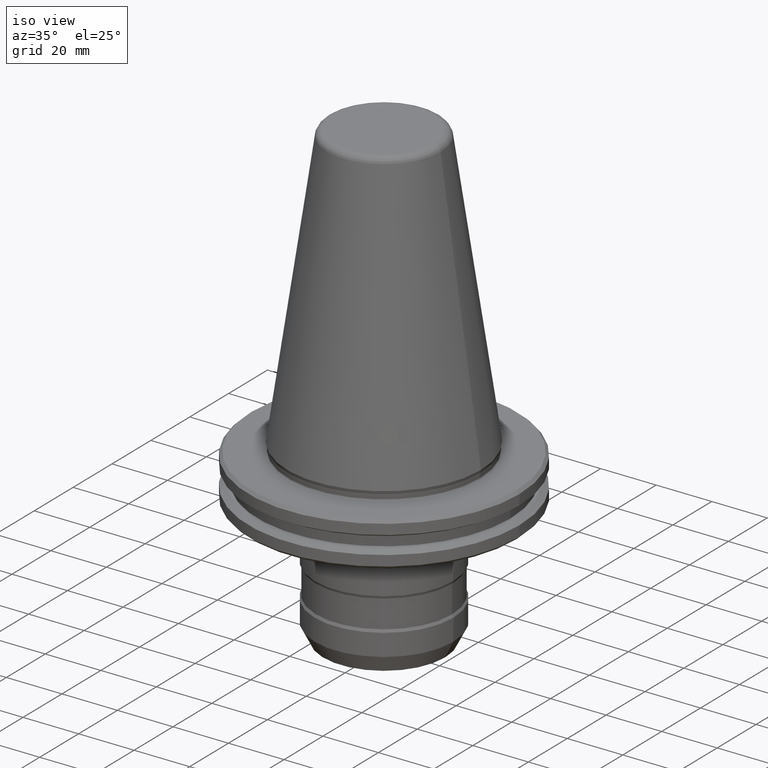
[diagram: clean part render]
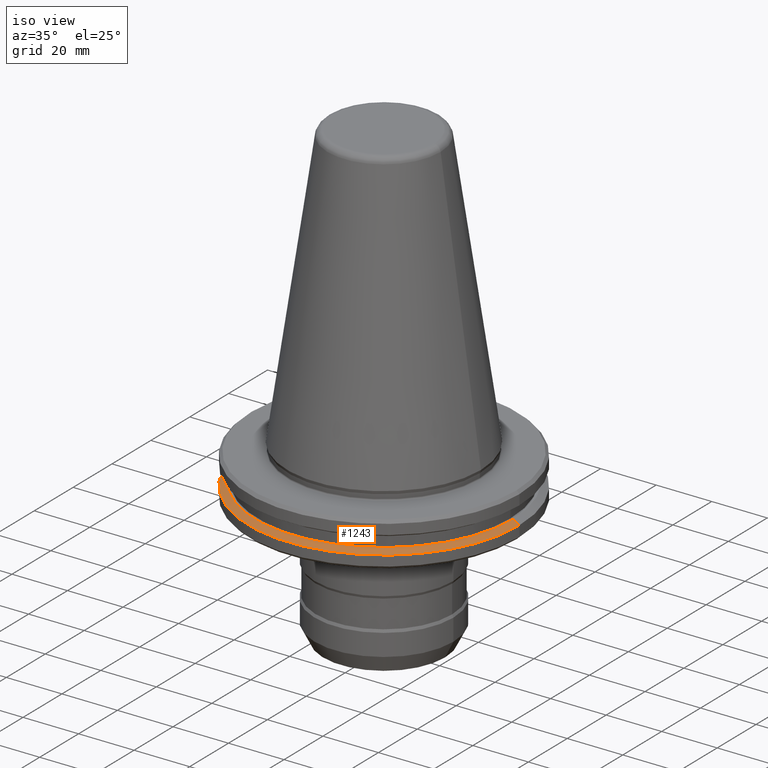
[diagram: same view with one face highlighted and labeled with its STEP entity id]
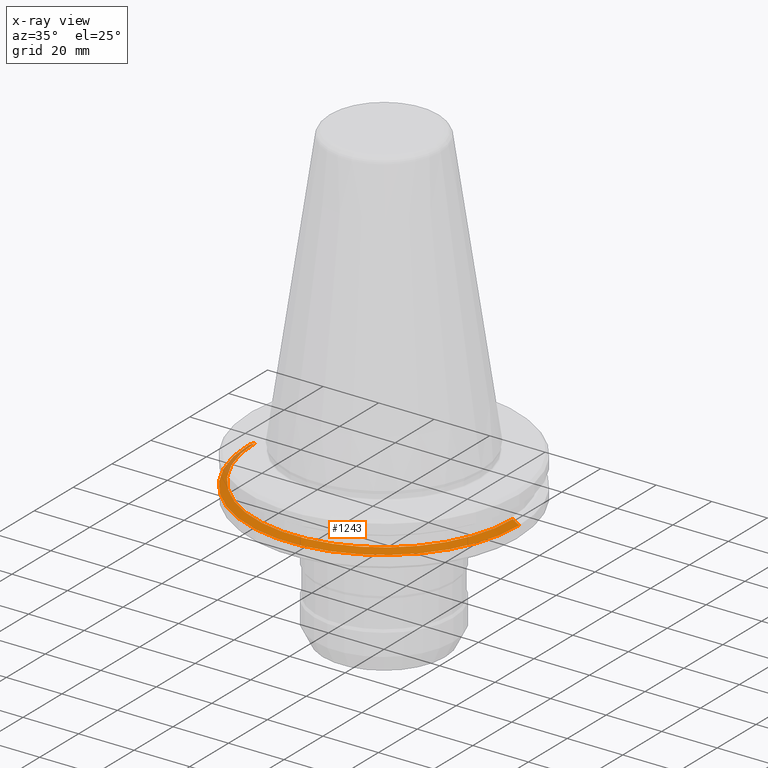
[diagram: x-ray of the same camera — body ghosted, the highlighted face saturated]
A machine part, iso view. The second image highlights one B-rep face of the part: STEP entity #1243.
The next image is the same camera in x-ray: the body ghosted, the highlighted face saturated — about 5% of this face is hidden behind the body in this view.
In plain terms, the highlighted conical surface has half-angle 60 deg.
Its self-contained STEP definition (entity closure, byte-faithful):
#10 = CARTESIAN_POINT ( 'NONE',  ( 48.75000000637186300, 0.0000000000000000000, -14.34759526419227000 ) ) ;
#14 = VECTOR ( 'NONE', #1068, 1000.000000000000000 ) ;
#54 = LINE ( 'NONE', #961, #590 ) ;
#143 = AXIS2_PLACEMENT_3D ( 'NONE', #1147, #598, #374 ) ;
#162 = AXIS2_PLACEMENT_3D ( 'NONE', #783, #192, #239 ) ;
#183 = VERTEX_POINT ( 'NONE', #615 ) ;
#192 = DIRECTION ( 'NONE',  ( 0.0000000000000000000, 0.0000000000000000000, -1.000000000000000000 ) ) ;
#232 = ORIENTED_EDGE ( 'NONE', *, *, #356, .T. ) ;
#239 = DIRECTION ( 'NONE',  ( -1.000000000000000000, 0.0000000000000000000, 0.0000000000000000000 ) ) ;
#287 = CARTESIAN_POINT ( 'NONE',  ( 48.75000000637186300, 5.970153146623674900E-015, -14.34759526419227000 ) ) ;
#321 = DIRECTION ( 'NONE',  ( -0.8660254037844421500, 0.0000000000000000000, -0.4999999999999939500 ) ) ;
#324 = VERTEX_POINT ( 'NONE', #10 ) ;
#356 = EDGE_CURVE ( 'NONE', #1009, #183, #54, .T. ) ;
#374 = DIRECTION ( 'NONE',  ( 1.000000000000000000, 0.0000000000000000000, 0.0000000000000000000 ) ) ;
#375 = FACE_OUTER_BOUND ( 'NONE', #924, .T. ) ;
#434 = CIRCLE ( 'NONE', #974, 48.75000000637186300 ) ;
#497 = ORIENTED_EDGE ( 'NONE', *, *, #936, .T. ) ;
#589 = CIRCLE ( 'NONE', #143, 46.37259527056269800 ) ;
#590 = VECTOR ( 'NONE', #321, 1000.000000000000000 ) ;
#598 = DIRECTION ( 'NONE',  ( -0.0000000000000000000, -0.0000000000000000000, 1.000000000000000000 ) ) ;
#615 = CARTESIAN_POINT ( 'NONE',  ( -48.75000000637186300, 5.970153146623674900E-015, -14.34759526419227000 ) ) ;
#783 = CARTESIAN_POINT ( 'NONE',  ( 0.0000000000000000000, 0.0000000000000000000, -14.34759526419227000 ) ) ;
#799 = EDGE_CURVE ( 'NONE', #1009, #1210, #589, .T. ) ;
#842 = EDGE_CURVE ( 'NONE', #1210, #324, #1050, .T. ) ;
#871 = ORIENTED_EDGE ( 'NONE', *, *, #842, .F. ) ;
#924 = EDGE_LOOP ( 'NONE', ( #871, #1133, #232, #497 ) ) ;
#926 = CARTESIAN_POINT ( 'NONE',  ( 46.37259527056269800, 5.824579091624352800E-015, -12.97500000000018100 ) ) ;
#933 = CARTESIAN_POINT ( 'NONE',  ( 0.0000000000000000000, 0.0000000000000000000, -14.34759526419227000 ) ) ;
#936 = EDGE_CURVE ( 'NONE', #183, #324, #434, .T. ) ;
#961 = CARTESIAN_POINT ( 'NONE',  ( -48.75000000637186300, 0.0000000000000000000, -14.34759526419227000 ) ) ;
#973 = DIRECTION ( 'NONE',  ( -0.0000000000000000000, -0.0000000000000000000, 1.000000000000000000 ) ) ;
#974 = AXIS2_PLACEMENT_3D ( 'NONE', #933, #973, #1048 ) ;
#982 = CARTESIAN_POINT ( 'NONE',  ( -46.37259527056269800, 0.0000000000000000000, -12.97500000000018100 ) ) ;
#1009 = VERTEX_POINT ( 'NONE', #982 ) ;
#1048 = DIRECTION ( 'NONE',  ( 1.000000000000000000, 0.0000000000000000000, 0.0000000000000000000 ) ) ;
#1050 = LINE ( 'NONE', #287, #14 ) ;
#1062 = CONICAL_SURFACE ( 'NONE', #162, 48.75000000637186300, 1.047197551196604700 ) ;
#1068 = DIRECTION ( 'NONE',  ( 0.8660254037844421500, 1.060575238724911200E-016, -0.4999999999999939500 ) ) ;
#1133 = ORIENTED_EDGE ( 'NONE', *, *, #799, .F. ) ;
#1147 = CARTESIAN_POINT ( 'NONE',  ( 0.0000000000000000000, 0.0000000000000000000, -12.97500000000018100 ) ) ;
#1210 = VERTEX_POINT ( 'NONE', #926 ) ;
#1243 = ADVANCED_FACE ( 'NONE', ( #375 ), #1062, .T. ) ;